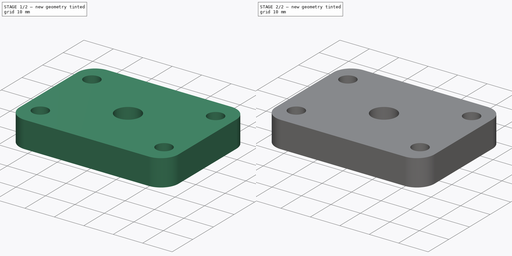
[diagram: build sequence overview — one tinted view per stage of 2, left to right]
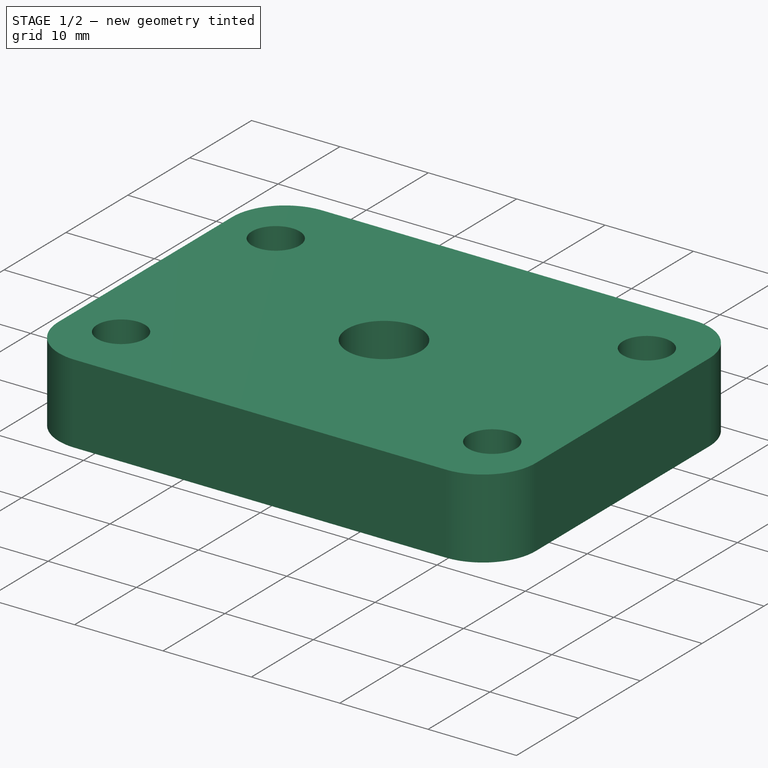
[diagram: stage 1 of 2 — iso view after this stage's code; geometry added in this stage tinted green]
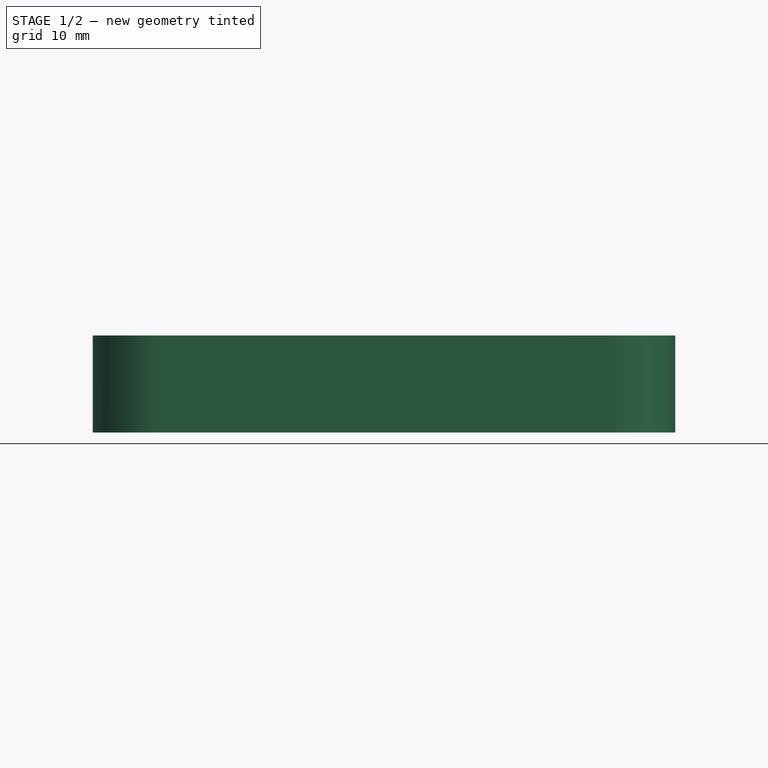
[diagram: stage 1 of 2 — front view after this stage's code; geometry added in this stage tinted green]
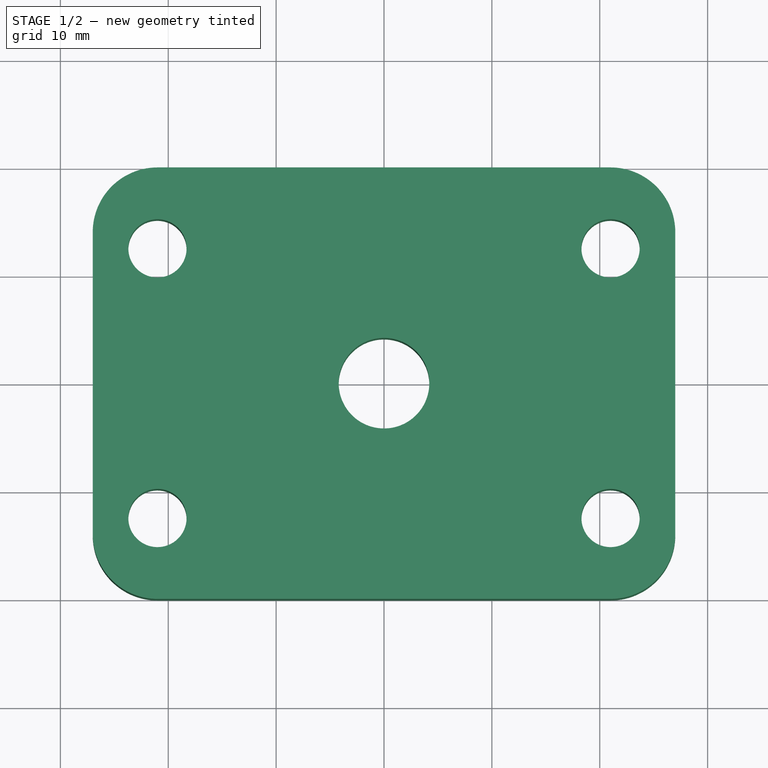
[diagram: stage 1 of 2 — top view after this stage's code; geometry added in this stage tinted green]
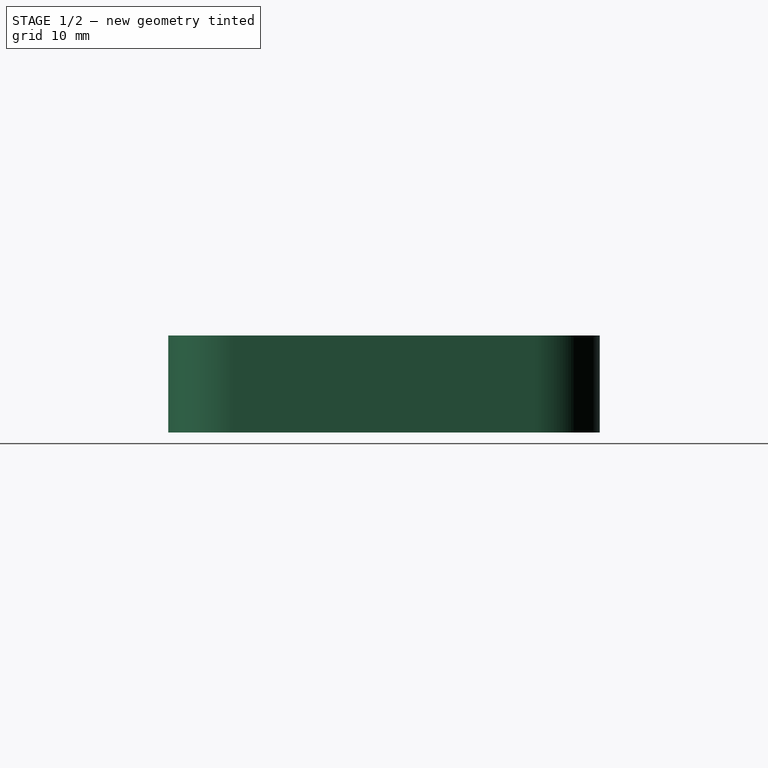
[diagram: stage 1 of 2 — right view after this stage's code; geometry added in this stage tinted green]
FCSTD DOCUMENT  (FreeCAD 0.19R24291 (Git))
Label: крепёж цинлиндра переворота
License: All rights reserved
LicenseURL: http://en.wikipedia.org/wiki/All_rights_reserved
objects: Sketcher::SketchObject×2, PartDesign::Mirrored×2, PartDesign::Pad×1, PartDesign::MultiTransform×1, PartDesign::Pocket×1, PartDesign::Body×1
note: 10 computed .brp shape members not serialized (recipe doc carries the construction recipe); baked Part::Feature solids carry a one-line shape summary decoded from their .brp

FEATURE [Sketcher::SketchObject] Sketch
  FullyConstrained = true
  MapMode = 5
  Support = -> [XY_Plane]
  sketch-geometry (7):
    g0: ArcOfCircle CenterX=0 CenterY=0 CenterZ=0 NormalX=0 NormalY=0 NormalZ=1 AngleXU=0 Radius=4.2 StartAngle=4.71239 EndAngle=6.28319
    g1: LineSegment StartX=4.2 StartY=-1e-15 StartZ=0 EndX=27 EndY=-1e-15 EndZ=0
    g2: LineSegment StartX=27 StartY=-1e-15 StartZ=0 EndX=27 EndY=-14 EndZ=0
    g3: LineSegment StartX=21 StartY=-20 StartZ=0 EndX=0 EndY=-20 EndZ=0
    g4: LineSegment StartX=0 StartY=-20 StartZ=0 EndX=0 EndY=-4.2 EndZ=0
    g5: ArcOfCircle CenterX=21 CenterY=-14 CenterZ=0 NormalX=0 NormalY=0 NormalZ=1 AngleXU=0 Radius=6 StartAngle=4.71239 EndAngle=6.28319
    g6: Circle CenterX=21 CenterY=-12.5 CenterZ=0 NormalX=0 NormalY=0 NormalZ=1 AngleXU=0 Radius=2.7
  constraints (20):
    c: Coincident(g0,g-1)
    c: PointOnObject(g0,g-2)
    c: Coincident(g1,g2)
    c: Coincident(g3,g4)
    c: Horizontal(g1)
    c: Horizontal(g3)
    c: Vertical(g2)
    c: Vertical(g4)
    c: Tangent(g3,g5) = 1.5708
    c: Tangent(g2,g5) = 1.5708
    c: Distance(g2,g-2) = 27
    c: Distance(g3,g-1) = 20
    c: Diameter(g0) = 8.4
    c: Diameter(g6) = 5.4
    c: Distance(g6,g-1) = 12.5
    c: Distance(g6,g-2) = 21
    c: Vertical(g5,g6)
    c: Coincident(g4,g0)
    c: Coincident(g1,g0)
    c: PointOnObject(g0,g-1)
FEATURE [PartDesign::Pad] Pad
  Direction = (1,1,1)
  Length = 9
  Length2 = 100
  Profile = -> Sketch
  Type = 0
FEATURE [PartDesign::Mirrored] Mirrored
  MirrorPlane = -> Sketch [V_Axis]
FEATURE [PartDesign::Mirrored] Mirrored001
  MirrorPlane = -> Sketch [H_Axis]
FEATURE [PartDesign::MultiTransform] MultiTransform
  BaseFeature = -> Pad
  Originals = -> [Pad]
  Transformations = -> [Mirrored,Mirrored001]
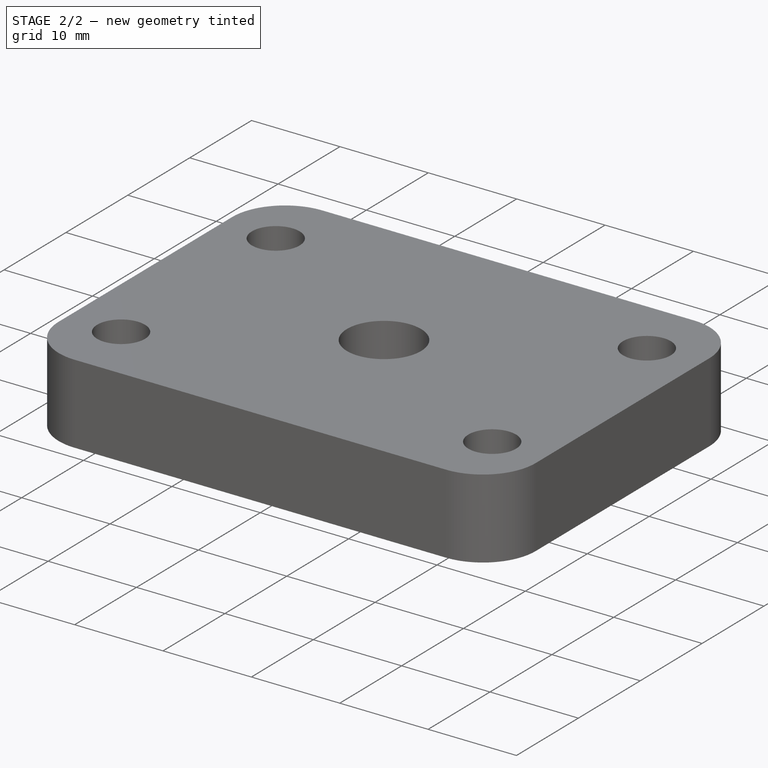
[diagram: stage 2 of 2 — iso view after this stage's code; geometry added in this stage tinted green]
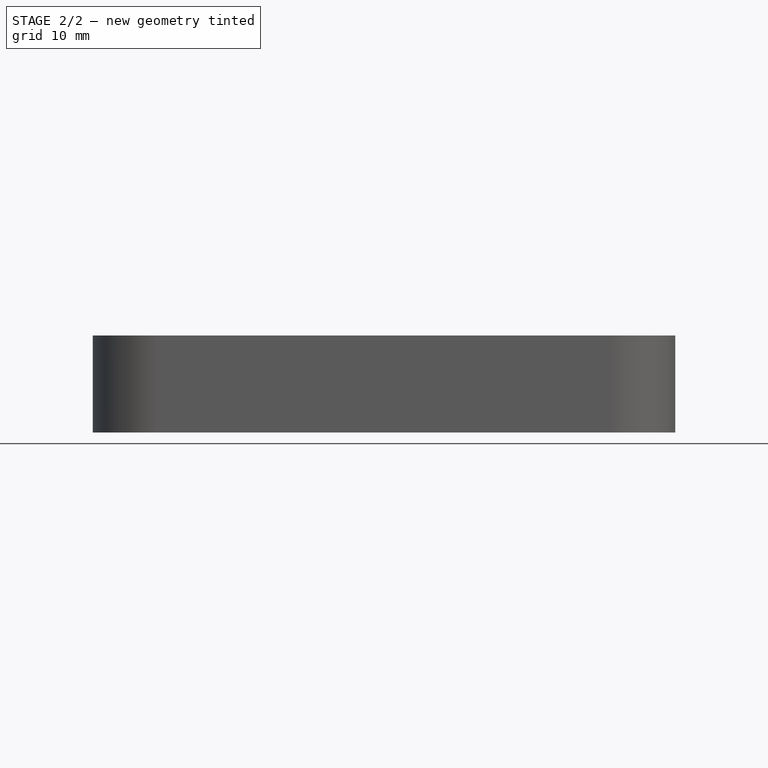
[diagram: stage 2 of 2 — front view after this stage's code; geometry added in this stage tinted green]
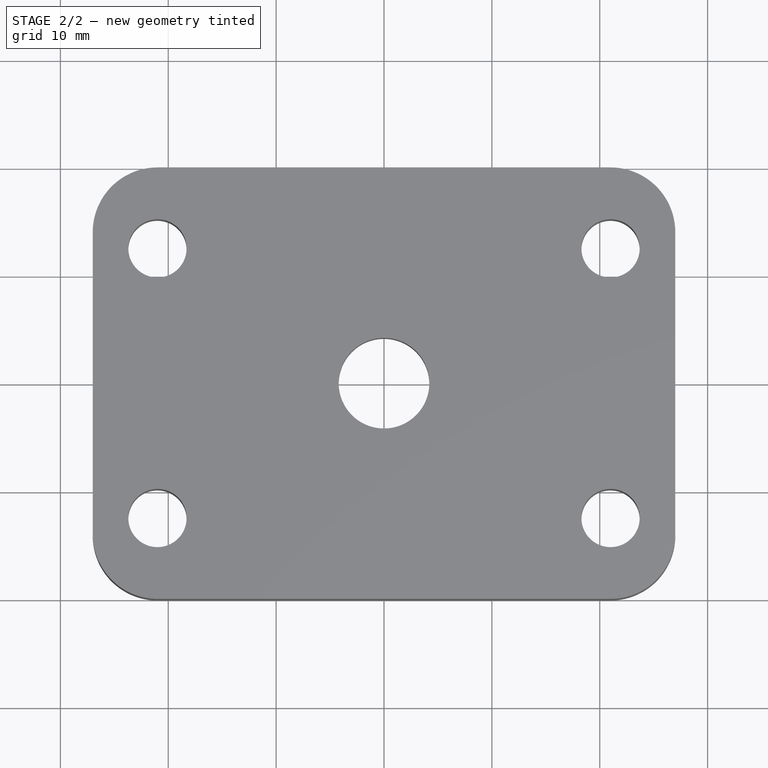
[diagram: stage 2 of 2 — top view after this stage's code; geometry added in this stage tinted green]
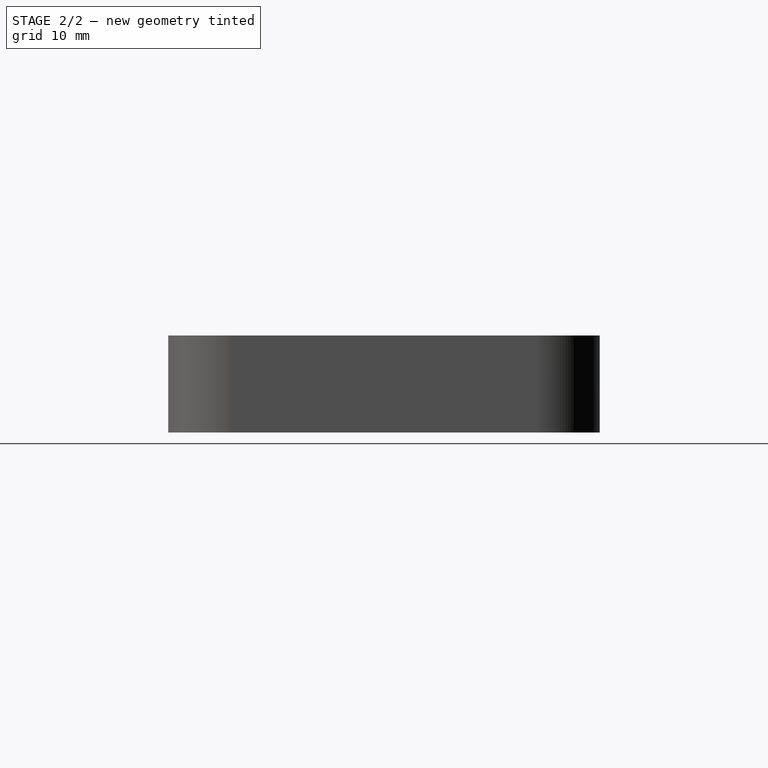
[diagram: stage 2 of 2 — right view after this stage's code; geometry added in this stage tinted green]
FEATURE [Sketcher::SketchObject] Sketch001
  FullyConstrained = true
  MapMode = 5
  Support = -> [XY_Plane]
  sketch-geometry (7):
    g0: LineSegment StartX=6.5 StartY=3.75278 StartZ=0 EndX=0 EndY=7.50555 EndZ=0
    g1: LineSegment StartX=0 StartY=7.50555 StartZ=0 EndX=-6.5 EndY=3.75278 EndZ=0
    g2: LineSegment StartX=-6.5 StartY=3.75278 StartZ=0 EndX=-6.5 EndY=-3.75278 EndZ=0
    g3: LineSegment StartX=-6.5 StartY=-3.75278 StartZ=0 EndX=0 EndY=-7.50555 EndZ=0
    g4: LineSegment StartX=0 StartY=-7.50555 StartZ=0 EndX=6.5 EndY=-3.75278 EndZ=0
    g5: LineSegment StartX=6.5 StartY=-3.75278 StartZ=0 EndX=6.5 EndY=3.75278 EndZ=0
    g6: Circle CenterX=0 CenterY=0 CenterZ=0 NormalX=0 NormalY=0 NormalZ=1 AngleXU=0 Radius=7.50555
  constraints (16):
    c: Coincident(g0,g1)
    c: Coincident(g1,g2)
    c: Coincident(g2,g3)
    c: Coincident(g3,g4)
    c: Coincident(g4,g5)
    c: Coincident(g5,g0)
    c: Equal(g0, g1-g5) x5
    c: PointOnObject(g0,g6)
    c: PointOnObject(g1,g6)
    c: PointOnObject(g2,g6)
    c: PointOnObject(g3,g6)
    c: PointOnObject(g4,g6)
    c: PointOnObject(g5,g6)
    c: Coincident(g6,g-1)
    c: Vertical(g5)
    c: Distance(g0,g1) = 13
FEATURE [PartDesign::Pocket] Pocket
  BaseFeature = -> MultiTransform
  Length = 3
  Length2 = 100
  Profile = -> Sketch001
  Reversed = true
  Type = 0
FEATURE [PartDesign::Body] Body
  Group = -> [Sketch,Pad,MultiTransform,Mirrored,Mirrored001,Sketch001,Pocket]
  Origin = -> Origin
  Tip = -> Pocket
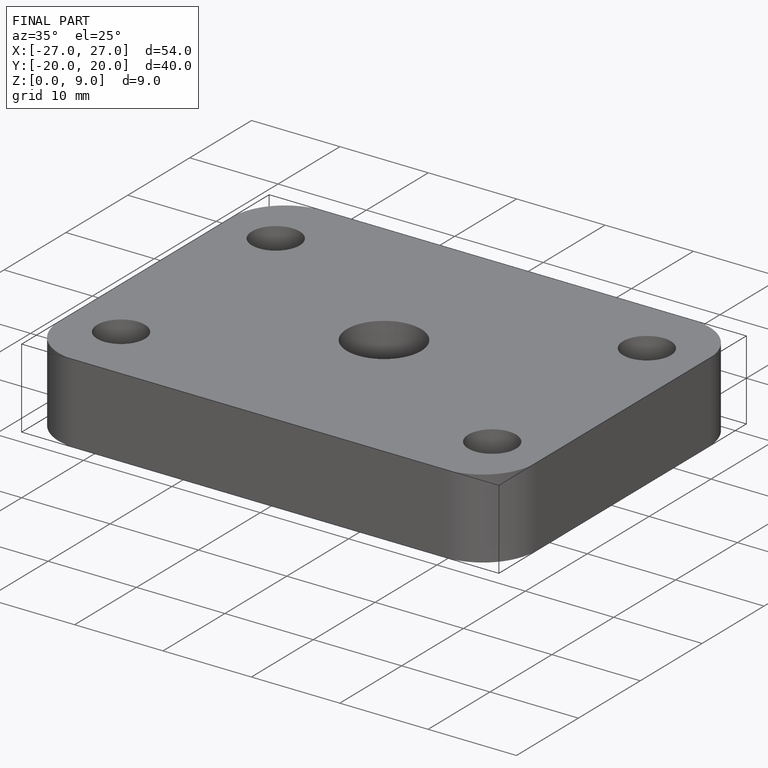
[diagram: finished part — iso view with bounding-box wireframe]
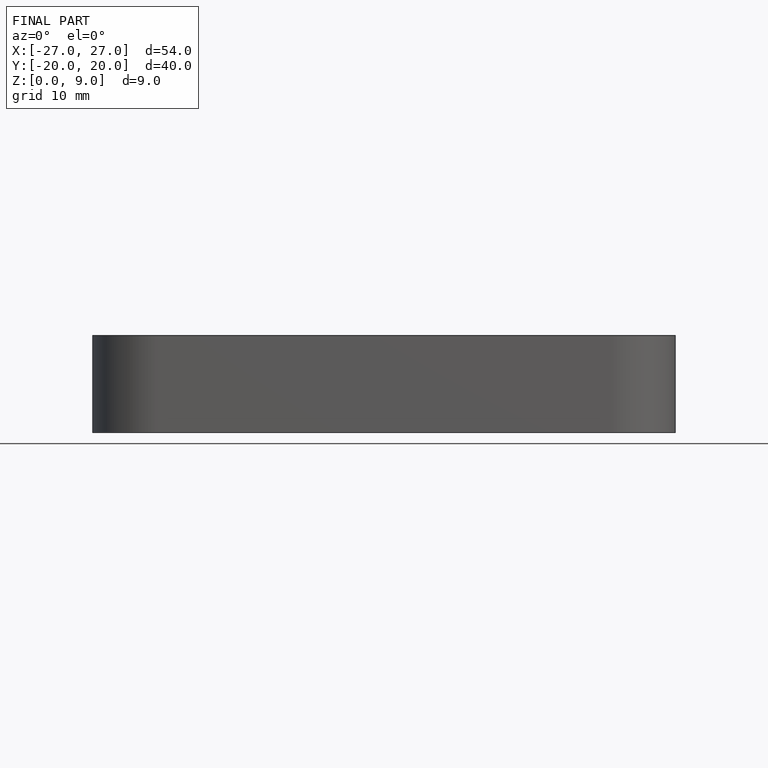
[diagram: finished part — front view with bounding-box wireframe]
